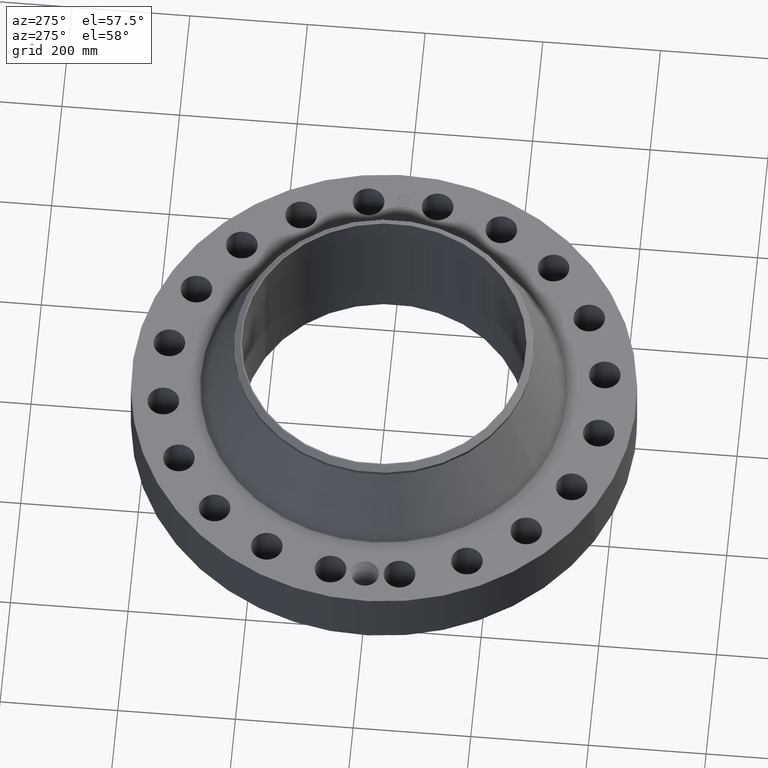
[diagram: clean part render]
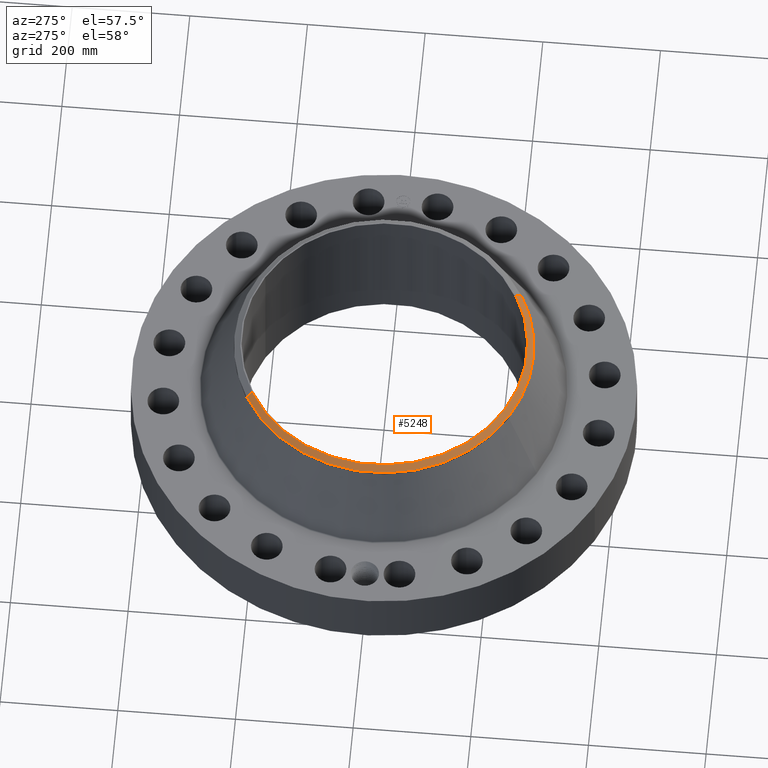
[diagram: same view with one face highlighted and labeled with its STEP entity id]
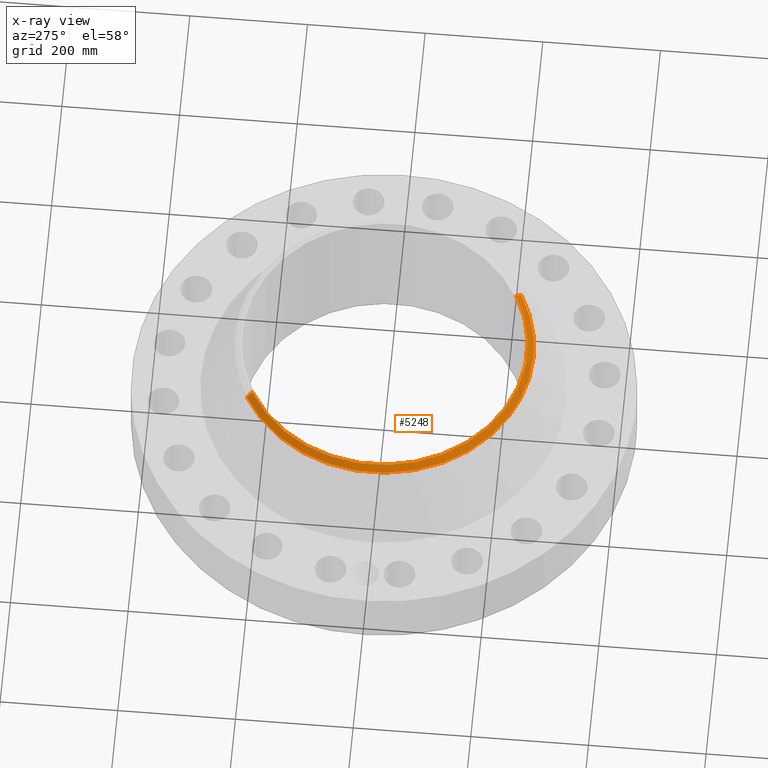
[diagram: x-ray of the same camera — body ghosted, the highlighted face saturated]
A machine part, auxiliary view. The second image highlights one B-rep face of the part: STEP entity #5248.
The next image is the same camera in x-ray: the body ghosted, the highlighted face saturated — about 0% of this face is hidden behind the body in this view.
In plain terms, the highlighted conical surface has half-angle 52.5 deg.
Its self-contained STEP definition (entity closure, byte-faithful):
#4050=AXIS2_PLACEMENT_3D('Circle Axis2P3D',#4048,#4049,$) ;
#4063=AXIS2_PLACEMENT_3D('Circle Axis2P3D',#4061,#4062,$) ;
#4865=AXIS2_PLACEMENT_3D('Circle Axis2P3D',#4863,#4864,$) ;
#5221=AXIS2_PLACEMENT_3D('Cone Axis2P3D',#5218,#5219,#5220) ;
#4031=CARTESIAN_POINT('Vertex',(-4.79425538606,-8.77582561894,9.67675595392)) ;
#4045=CARTESIAN_POINT('Vertex',(4.79425538606,-8.77582561894,9.67675595392)) ;
#4048=CARTESIAN_POINT('Axis2P3D Location',(0.,0.,9.67675595392)) ;
#4061=CARTESIAN_POINT('Axis2P3D Location',(0.,0.,9.67675595392)) ;
#4065=CARTESIAN_POINT('Vertex',(-4.79425538606,8.77582561894,9.67675595392)) ;
#4858=CARTESIAN_POINT('Vertex',(4.59229265917,-8.40613532712,10.)) ;
#4860=CARTESIAN_POINT('Vertex',(-4.59229265917,8.40613532712,10.)) ;
#4863=CARTESIAN_POINT('Axis2P3D Location',(0.,0.,10.)) ;
#5218=CARTESIAN_POINT('Axis2P3D Location',(0.,0.,10.)) ;
#5223=CARTESIAN_POINT('Line Origine',(-4.69327402261,8.59098047303,9.83837797698)) ;
#5228=CARTESIAN_POINT('Line Origine',(4.69327402261,-8.59098047303,9.83837797698)) ;
#4049=DIRECTION('Axis2P3D Direction',(0.,0.,-0.0393700787402)) ;
#4062=DIRECTION('Axis2P3D Direction',(0.,0.,-0.0393700787402)) ;
#4864=DIRECTION('Axis2P3D Direction',(0.,0.,-0.0393700787402)) ;
#5219=DIRECTION('Axis2P3D Direction',(-0.,-0.,-0.0393700787402)) ;
#5220=DIRECTION('Axis2P3D XDirection',(0.0188750212049,-0.0345504945626,0.)) ;
#5224=DIRECTION('Vector Direction',(-0.014974561121,0.02741075027,-0.023966985394)) ;
#5229=DIRECTION('Vector Direction',(0.014974561121,-0.02741075027,-0.023966985394)) ;
#5225=VECTOR('Line Direction',#5224,0.0393700787402) ;
#5230=VECTOR('Line Direction',#5229,0.0393700787402) ;
#5242=ORIENTED_EDGE('',*,*,#5232,.F.) ;
#5243=ORIENTED_EDGE('',*,*,#4867,.F.) ;
#5244=ORIENTED_EDGE('',*,*,#5227,.T.) ;
#5245=ORIENTED_EDGE('',*,*,#4067,.T.) ;
#5246=ORIENTED_EDGE('',*,*,#4052,.F.) ;
#5248=ADVANCED_FACE('PartBody',(#5247),#5222,.T.) ;
#4051=CIRCLE('generated circle',#4050,10.) ;
#4064=CIRCLE('generated circle',#4063,10.) ;
#4866=CIRCLE('generated circle',#4865,9.57874015752) ;
#5222=CONICAL_SURFACE('Cone',#5221,9.57874015752,0.916297857297) ;
#4052=EDGE_CURVE('',#4046,#4032,#4051,.T.) ;
#4067=EDGE_CURVE('',#4066,#4032,#4064,.F.) ;
#4867=EDGE_CURVE('',#4861,#4859,#4866,.F.) ;
#5227=EDGE_CURVE('',#4861,#4066,#5226,.T.) ;
#5232=EDGE_CURVE('',#4859,#4046,#5231,.T.) ;
#5241=EDGE_LOOP('',(#5242,#5243,#5244,#5245,#5246)) ;
#5247=FACE_OUTER_BOUND('',#5241,.T.) ;
#5226=LINE('Line',#5223,#5225) ;
#5231=LINE('Line',#5228,#5230) ;
#4032=VERTEX_POINT('',#4031) ;
#4046=VERTEX_POINT('',#4045) ;
#4066=VERTEX_POINT('',#4065) ;
#4859=VERTEX_POINT('',#4858) ;
#4861=VERTEX_POINT('',#4860) ;